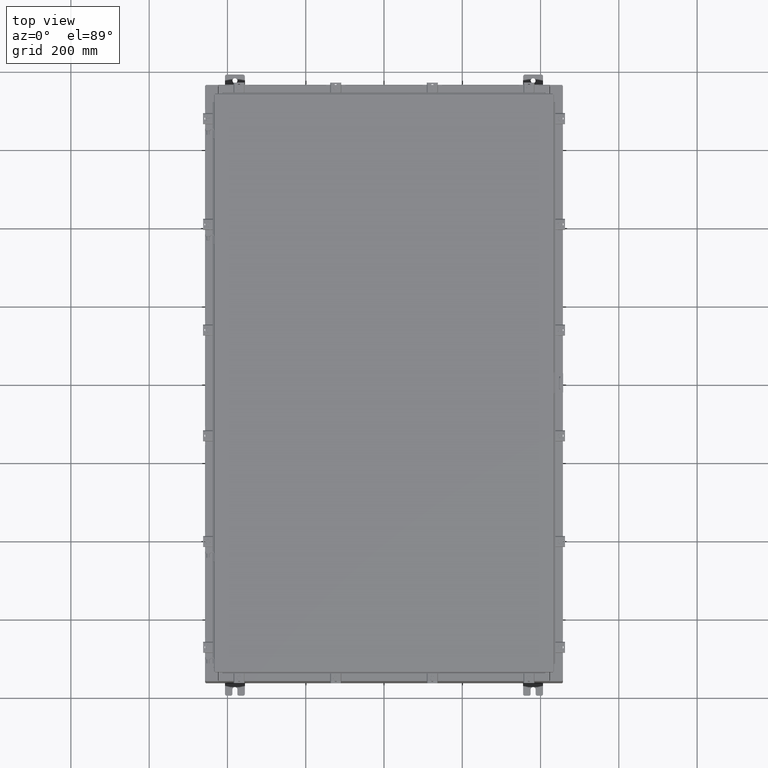
[diagram: clean part render]
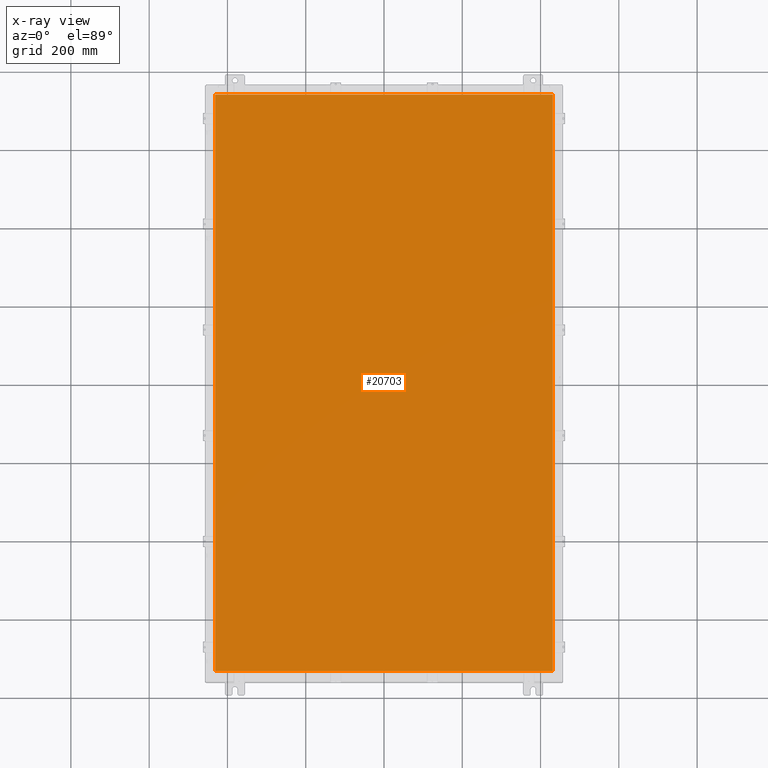
[diagram: x-ray — body ghosted, one internal face saturated and labeled with its STEP entity id]
A machine part, top view, then the same camera in x-ray: the body is ghosted and one INTERNAL B-rep face — a face not visible from any outside direction — is saturated and labeled: STEP entity #20703.
In plain terms, the highlighted planar face has unit normal (0, 0, -1).
Its self-contained STEP definition (entity closure, byte-faithful):
#886 = DIRECTION ( 'NONE',  ( 1.000000000000000000, -0.0000000000000000000, -0.0000000000000000000 ) ) ;
#1511 = CARTESIAN_POINT ( 'NONE',  ( -16.99029999999999800, -29.00630000000000300, -0.07470000000000000300 ) ) ;
#2135 = VECTOR ( 'NONE', #886, 39.37007874015748100 ) ;
#2189 = CARTESIAN_POINT ( 'NONE',  ( 16.99030000000000500, 29.00630000000000000, -0.07470000000000000300 ) ) ;
#2754 = VERTEX_POINT ( 'NONE', #1511 ) ;
#3977 = DIRECTION ( 'NONE',  ( 0.0000000000000000000, -1.000000000000000000, 0.0000000000000000000 ) ) ;
#4636 = VECTOR ( 'NONE', #26106, 39.37007874015748100 ) ;
#6122 = CARTESIAN_POINT ( 'NONE',  ( -16.99029999999999800, 29.00629999999998900, -0.07470000000000019700 ) ) ;
#6368 = CARTESIAN_POINT ( 'NONE',  ( 0.0000000000000000000, 0.0000000000000000000, -0.07470000000000000300 ) ) ;
#6919 = CARTESIAN_POINT ( 'NONE',  ( 16.99030000000000500, -29.00630000000000000, -0.07470000000000019700 ) ) ;
#8806 = ORIENTED_EDGE ( 'NONE', *, *, #16462, .F. ) ;
#9328 = FACE_OUTER_BOUND ( 'NONE', #23169, .T. ) ;
#9476 = VECTOR ( 'NONE', #3977, 39.37007874015748100 ) ;
#9977 = CARTESIAN_POINT ( 'NONE',  ( 16.99030000000000500, -29.00630000000000300, -0.07470000000000000300 ) ) ;
#10294 = LINE ( 'NONE', #6919, #4636 ) ;
#10643 = DIRECTION ( 'NONE',  ( -1.000000000000000000, 0.0000000000000000000, -0.0000000000000000000 ) ) ;
#12830 = VERTEX_POINT ( 'NONE', #22056 ) ;
#13270 = ORIENTED_EDGE ( 'NONE', *, *, #16820, .F. ) ;
#13444 = LINE ( 'NONE', #13555, #2135 ) ;
#13555 = CARTESIAN_POINT ( 'NONE',  ( -16.99029999999999400, -29.00630000000000700, -0.07469999999999804600 ) ) ;
#13814 = EDGE_CURVE ( 'NONE', #15208, #12830, #21381, .T. ) ;
#14348 = DIRECTION ( 'NONE',  ( -1.000000000000000000, -0.0000000000000000000, -0.0000000000000000000 ) ) ;
#15039 = VECTOR ( 'NONE', #14348, 39.37007874015748100 ) ;
#15208 = VERTEX_POINT ( 'NONE', #2189 ) ;
#16462 = EDGE_CURVE ( 'NONE', #12830, #2754, #26466, .T. ) ;
#16820 = EDGE_CURVE ( 'NONE', #2754, #23182, #13444, .T. ) ;
#20511 = AXIS2_PLACEMENT_3D ( 'NONE', #6368, #23425, #10643 ) ;
#20703 = ADVANCED_FACE ( 'NONE', ( #9328 ), #27511, .T. ) ;
#20900 = EDGE_CURVE ( 'NONE', #23182, #15208, #10294, .T. ) ;
#21381 = LINE ( 'NONE', #27109, #15039 ) ;
#22056 = CARTESIAN_POINT ( 'NONE',  ( -16.99029999999999800, 29.00630000000000000, -0.07470000000000000300 ) ) ;
#23169 = EDGE_LOOP ( 'NONE', ( #23768, #13270, #8806, #26549 ) ) ;
#23182 = VERTEX_POINT ( 'NONE', #9977 ) ;
#23425 = DIRECTION ( 'NONE',  ( 0.0000000000000000000, 0.0000000000000000000, -1.000000000000000000 ) ) ;
#23768 = ORIENTED_EDGE ( 'NONE', *, *, #20900, .F. ) ;
#26106 = DIRECTION ( 'NONE',  ( 0.0000000000000000000, 1.000000000000000000, 0.0000000000000000000 ) ) ;
#26466 = LINE ( 'NONE', #6122, #9476 ) ;
#26549 = ORIENTED_EDGE ( 'NONE', *, *, #13814, .F. ) ;
#27109 = CARTESIAN_POINT ( 'NONE',  ( 16.99030000000000100, 29.00630000000000300, -0.07469999999999804600 ) ) ;
#27511 = PLANE ( 'NONE',  #20511 ) ;